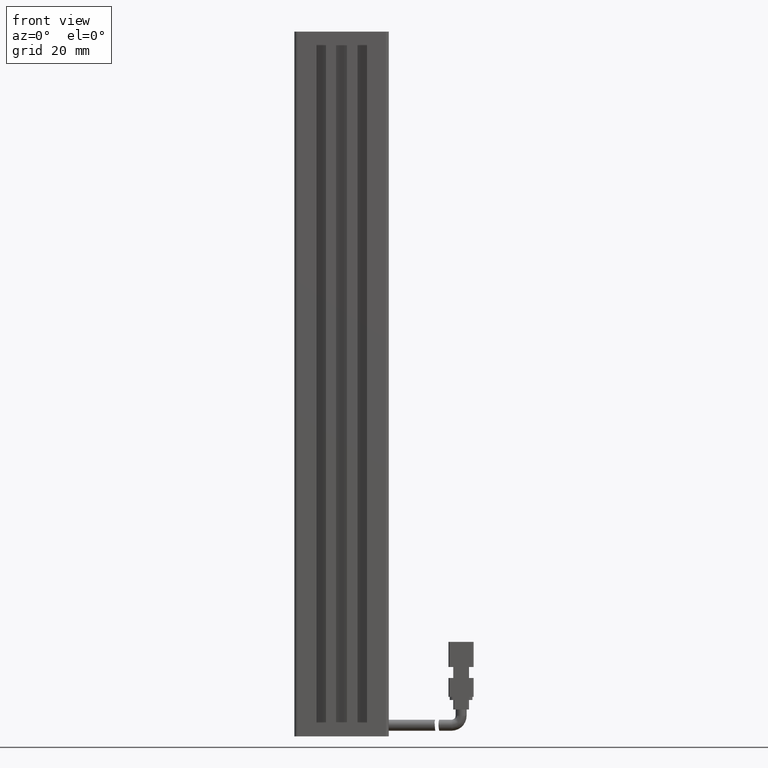
[diagram: clean part render]
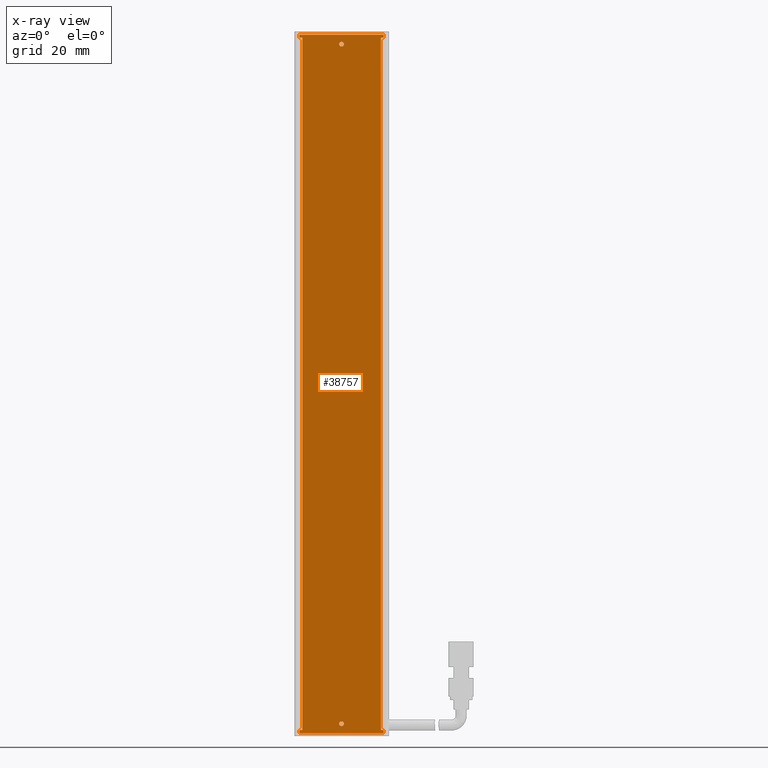
[diagram: x-ray — body ghosted, one internal face saturated and labeled with its STEP entity id]
A machine part, front view, then the same camera in x-ray: the body is ghosted and one INTERNAL B-rep face — a face not visible from any outside direction — is saturated and labeled: STEP entity #38757.
In plain terms, the highlighted planar face has unit normal (-0, 1, 0).
Its self-contained STEP definition (entity closure, byte-faithful):
#457 = DIRECTION ( 'NONE',  ( -5.551115123125781500E-017, -0.0000000000000000000, -1.000000000000000000 ) ) ;
#646 = VERTEX_POINT ( 'NONE', #6693 ) ;
#893 = VECTOR ( 'NONE', #2416, 1000.000000000000000 ) ;
#1146 = CARTESIAN_POINT ( 'NONE',  ( 40.92537974683541800, 32.19594479660386100, -7.749999999999978700 ) ) ;
#2045 = LINE ( 'NONE', #29145, #893 ) ;
#2416 = DIRECTION ( 'NONE',  ( -1.000000000000000000, -0.0000000000000000000, 0.0000000000000000000 ) ) ;
#2928 = ORIENTED_EDGE ( 'NONE', *, *, #33642, .F. ) ;
#3113 = EDGE_LOOP ( 'NONE', ( #26851, #42438 ) ) ;
#3414 = CARTESIAN_POINT ( 'NONE',  ( 54.32537974683540900, 32.19594479660386100, -225.0000000000000000 ) ) ;
#3418 = VERTEX_POINT ( 'NONE', #45708 ) ;
#3623 = CARTESIAN_POINT ( 'NONE',  ( 40.92537974683538200, 32.19594479660386100, -222.2499999999999700 ) ) ;
#3872 = EDGE_CURVE ( 'NONE', #10543, #20979, #39247, .T. ) ;
#4018 = CARTESIAN_POINT ( 'NONE',  ( 28.42537974683542100, 32.19594479660386800, -225.0000000000000000 ) ) ;
#4645 = CARTESIAN_POINT ( 'NONE',  ( 40.92537974683538200, 32.19594479660386100, -222.9999999999999700 ) ) ;
#4692 = EDGE_CURVE ( 'NONE', #29725, #646, #40831, .T. ) ;
#5108 = VECTOR ( 'NONE', #19353, 1000.000000000000000 ) ;
#6693 = CARTESIAN_POINT ( 'NONE',  ( 54.32537974683541600, 32.19594479660386100, -5.000000000000004400 ) ) ;
#6778 = EDGE_CURVE ( 'NONE', #3418, #45992, #45008, .T. ) ;
#6790 = CIRCLE ( 'NONE', #43335, 0.7499999999999997800 ) ;
#7060 = VECTOR ( 'NONE', #8692, 1000.000000000000000 ) ;
#7537 = EDGE_LOOP ( 'NONE', ( #16380, #44627, #19421, #14374, #10986, #37104, #26875, #23112, #30688, #28340, #35672, #22054 ) ) ;
#8097 = DIRECTION ( 'NONE',  ( -0.0000000000000000000, -0.0000000000000000000, -1.000000000000000000 ) ) ;
#8517 = DIRECTION ( 'NONE',  ( 0.0000000000000000000, 0.0000000000000000000, 1.000000000000000000 ) ) ;
#8692 = DIRECTION ( 'NONE',  ( 5.551115123125781500E-017, 0.0000000000000000000, 1.000000000000000000 ) ) ;
#8709 = VERTEX_POINT ( 'NONE', #25631 ) ;
#9054 = CARTESIAN_POINT ( 'NONE',  ( 54.32537974683541600, 32.19594479660386100, -3.999999999999977400 ) ) ;
#9650 = EDGE_CURVE ( 'NONE', #29725, #38605, #42325, .T. ) ;
#9658 = EDGE_CURVE ( 'NONE', #26866, #33759, #20998, .T. ) ;
#10080 = VECTOR ( 'NONE', #47591, 1000.000000000000000 ) ;
#10543 = VERTEX_POINT ( 'NONE', #3414 ) ;
#10827 = VECTOR ( 'NONE', #42648, 1000.000000000000000 ) ;
#10986 = ORIENTED_EDGE ( 'NONE', *, *, #9658, .F. ) ;
#11790 = CARTESIAN_POINT ( 'NONE',  ( 27.52537974683539400, 32.19594479660386100, -3.999999999999976000 ) ) ;
#12207 = DIRECTION ( 'NONE',  ( -1.000000000000000000, -0.0000000000000000000, 5.551115123125781500E-017 ) ) ;
#12712 = EDGE_CURVE ( 'NONE', #8709, #31209, #15006, .T. ) ;
#12886 = DIRECTION ( 'NONE',  ( 5.551115123125781500E-017, 0.0000000000000000000, 1.000000000000000000 ) ) ;
#13688 = VECTOR ( 'NONE', #46316, 1000.000000000000000 ) ;
#14212 = DIRECTION ( 'NONE',  ( 1.000000000000000000, -0.0000000000000000000, 0.0000000000000000000 ) ) ;
#14225 = CARTESIAN_POINT ( 'NONE',  ( 25.92537974683541800, 32.19594479660386100, -5.000000000000004400 ) ) ;
#14374 = ORIENTED_EDGE ( 'NONE', *, *, #47522, .F. ) ;
#15006 = CIRCLE ( 'NONE', #26934, 0.7500000000000006700 ) ;
#15281 = CARTESIAN_POINT ( 'NONE',  ( 40.92537974683541800, 32.19594479660386100, -6.999999999999979600 ) ) ;
#16380 = ORIENTED_EDGE ( 'NONE', *, *, #38679, .F. ) ;
#16412 = CARTESIAN_POINT ( 'NONE',  ( 27.52537974683539400, 32.19594479660386100, -3.999999999999976000 ) ) ;
#17007 = EDGE_CURVE ( 'NONE', #17774, #39316, #34640, .T. ) ;
#17229 = LINE ( 'NONE', #31242, #26203 ) ;
#17774 = VERTEX_POINT ( 'NONE', #18265 ) ;
#18265 = CARTESIAN_POINT ( 'NONE',  ( 40.92537974683541800, 32.19594479660386100, -6.249999999999979600 ) ) ;
#19134 = DIRECTION ( 'NONE',  ( 0.0000000000000000000, 0.0000000000000000000, 1.000000000000000000 ) ) ;
#19258 = EDGE_CURVE ( 'NONE', #38604, #40803, #2045, .T. ) ;
#19353 = DIRECTION ( 'NONE',  ( 5.551115123125781500E-017, 0.0000000000000000000, 1.000000000000000000 ) ) ;
#19421 = ORIENTED_EDGE ( 'NONE', *, *, #4692, .T. ) ;
#19698 = CARTESIAN_POINT ( 'NONE',  ( 53.42537974683542500, 32.19594479660386800, -5.000000000000004400 ) ) ;
#19783 = FACE_BOUND ( 'NONE', #3113, .T. ) ;
#20406 = CARTESIAN_POINT ( 'NONE',  ( 54.32537974683541600, 32.19594479660386100, -3.999999999999977400 ) ) ;
#20979 = VERTEX_POINT ( 'NONE', #21653 ) ;
#20998 = LINE ( 'NONE', #47348, #10827 ) ;
#21490 = CARTESIAN_POINT ( 'NONE',  ( 40.92537974683541800, 32.19594479660386100, -6.999999999999979600 ) ) ;
#21653 = CARTESIAN_POINT ( 'NONE',  ( 54.32537974683539500, 32.19594479660386100, -225.9999999999999700 ) ) ;
#22054 = ORIENTED_EDGE ( 'NONE', *, *, #3872, .F. ) ;
#23112 = ORIENTED_EDGE ( 'NONE', *, *, #48317, .T. ) ;
#23521 = CARTESIAN_POINT ( 'NONE',  ( 54.32537974683541600, 32.19594479660386100, -3.999999999999977400 ) ) ;
#24822 = VECTOR ( 'NONE', #45144, 1000.000000000000000 ) ;
#25087 = CARTESIAN_POINT ( 'NONE',  ( 40.92537974683542500, 32.19594479660386800, -5.000000000000004400 ) ) ;
#25326 = DIRECTION ( 'NONE',  ( 0.0000000000000000000, 0.0000000000000000000, 1.000000000000000000 ) ) ;
#25631 = CARTESIAN_POINT ( 'NONE',  ( 40.92537974683538200, 32.19594479660386100, -223.7499999999999700 ) ) ;
#26203 = VECTOR ( 'NONE', #12207, 1000.000000000000000 ) ;
#26345 = CARTESIAN_POINT ( 'NONE',  ( 40.92537974683538200, 32.19594479660386100, -222.9999999999999700 ) ) ;
#26575 = EDGE_CURVE ( 'NONE', #39316, #17774, #6790, .T. ) ;
#26851 = ORIENTED_EDGE ( 'NONE', *, *, #17007, .F. ) ;
#26866 = VERTEX_POINT ( 'NONE', #49058 ) ;
#26875 = ORIENTED_EDGE ( 'NONE', *, *, #6778, .T. ) ;
#26934 = AXIS2_PLACEMENT_3D ( 'NONE', #26345, #35073, #43642 ) ;
#27158 = CARTESIAN_POINT ( 'NONE',  ( 28.42537974683542100, 32.19594479660386800, -3.000000000000002700 ) ) ;
#27518 = FACE_OUTER_BOUND ( 'NONE', #7537, .T. ) ;
#27741 = AXIS2_PLACEMENT_3D ( 'NONE', #21490, #48051, #25326 ) ;
#28179 = CARTESIAN_POINT ( 'NONE',  ( 28.42537974683542100, 32.19594479660386100, -5.000000000000004400 ) ) ;
#28340 = ORIENTED_EDGE ( 'NONE', *, *, #37080, .F. ) ;
#28920 = LINE ( 'NONE', #23521, #49090 ) ;
#29145 = CARTESIAN_POINT ( 'NONE',  ( 40.92537974683542500, 32.19594479660386800, -225.0000000000000000 ) ) ;
#29725 = VERTEX_POINT ( 'NONE', #19698 ) ;
#30688 = ORIENTED_EDGE ( 'NONE', *, *, #19258, .T. ) ;
#30768 = CARTESIAN_POINT ( 'NONE',  ( 53.42537974683542500, 32.19594479660386100, -225.0000000000000000 ) ) ;
#30885 = EDGE_LOOP ( 'NONE', ( #2928, #47901 ) ) ;
#31209 = VERTEX_POINT ( 'NONE', #3623 ) ;
#31242 = CARTESIAN_POINT ( 'NONE',  ( 54.32537974683540900, 32.19594479660386100, -225.9999999999999700 ) ) ;
#31251 = CARTESIAN_POINT ( 'NONE',  ( 40.92537974683542500, 32.19594479660386800, -225.0000000000000000 ) ) ;
#31366 = DIRECTION ( 'NONE',  ( -0.0000000000000000000, -1.000000000000000000, -0.0000000000000000000 ) ) ;
#31425 = CARTESIAN_POINT ( 'NONE',  ( 27.52537974683538400, 32.19594479660386800, -225.0000000000000000 ) ) ;
#32875 = AXIS2_PLACEMENT_3D ( 'NONE', #9054, #35712, #12886 ) ;
#33642 = EDGE_CURVE ( 'NONE', #31209, #8709, #39961, .T. ) ;
#33725 = DIRECTION ( 'NONE',  ( -0.0000000000000000000, -0.0000000000000000000, -1.000000000000000000 ) ) ;
#33759 = VERTEX_POINT ( 'NONE', #20406 ) ;
#34640 = CIRCLE ( 'NONE', #27741, 0.7499999999999997800 ) ;
#34698 = VECTOR ( 'NONE', #8097, 1000.000000000000000 ) ;
#35073 = DIRECTION ( 'NONE',  ( -0.0000000000000000000, -1.000000000000000000, -0.0000000000000000000 ) ) ;
#35368 = CARTESIAN_POINT ( 'NONE',  ( 27.52537974683538400, 32.19594479660386100, -225.9999999999999700 ) ) ;
#35560 = LINE ( 'NONE', #11790, #5108 ) ;
#35672 = ORIENTED_EDGE ( 'NONE', *, *, #48965, .F. ) ;
#35712 = DIRECTION ( 'NONE',  ( -0.0000000000000000000, 1.000000000000000000, 0.0000000000000000000 ) ) ;
#36349 = AXIS2_PLACEMENT_3D ( 'NONE', #4645, #31366, #8517 ) ;
#37062 = LINE ( 'NONE', #27158, #34698 ) ;
#37080 = EDGE_CURVE ( 'NONE', #41348, #40803, #35560, .T. ) ;
#37104 = ORIENTED_EDGE ( 'NONE', *, *, #42694, .F. ) ;
#37589 = FACE_BOUND ( 'NONE', #30885, .T. ) ;
#38604 = VERTEX_POINT ( 'NONE', #4018 ) ;
#38605 = VERTEX_POINT ( 'NONE', #30768 ) ;
#38679 = EDGE_CURVE ( 'NONE', #38605, #10543, #44057, .T. ) ;
#38757 = ADVANCED_FACE ( 'NONE', ( #27518, #19783, #37589 ), #42965, .F. ) ;
#39247 = LINE ( 'NONE', #45238, #10080 ) ;
#39316 = VERTEX_POINT ( 'NONE', #1146 ) ;
#39961 = CIRCLE ( 'NONE', #36349, 0.7500000000000006700 ) ;
#40803 = VERTEX_POINT ( 'NONE', #31425 ) ;
#40831 = LINE ( 'NONE', #14225, #41986 ) ;
#41171 = VECTOR ( 'NONE', #33725, 1000.000000000000000 ) ;
#41348 = VERTEX_POINT ( 'NONE', #35368 ) ;
#41851 = DIRECTION ( 'NONE',  ( -0.0000000000000000000, -1.000000000000000000, -0.0000000000000000000 ) ) ;
#41986 = VECTOR ( 'NONE', #14212, 1000.000000000000000 ) ;
#42325 = LINE ( 'NONE', #49133, #41171 ) ;
#42438 = ORIENTED_EDGE ( 'NONE', *, *, #26575, .F. ) ;
#42648 = DIRECTION ( 'NONE',  ( 1.000000000000000000, 0.0000000000000000000, -5.551115123125781500E-017 ) ) ;
#42694 = EDGE_CURVE ( 'NONE', #3418, #26866, #46358, .T. ) ;
#42965 = PLANE ( 'NONE',  #32875 ) ;
#43335 = AXIS2_PLACEMENT_3D ( 'NONE', #15281, #41851, #19134 ) ;
#43642 = DIRECTION ( 'NONE',  ( 0.0000000000000000000, 0.0000000000000000000, 1.000000000000000000 ) ) ;
#44057 = LINE ( 'NONE', #31251, #13688 ) ;
#44627 = ORIENTED_EDGE ( 'NONE', *, *, #9650, .F. ) ;
#45008 = LINE ( 'NONE', #25087, #24822 ) ;
#45144 = DIRECTION ( 'NONE',  ( 1.000000000000000000, 0.0000000000000000000, -0.0000000000000000000 ) ) ;
#45238 = CARTESIAN_POINT ( 'NONE',  ( 54.32537974683541600, 32.19594479660386100, -3.999999999999977400 ) ) ;
#45708 = CARTESIAN_POINT ( 'NONE',  ( 27.52537974683538400, 32.19594479660386800, -5.000000000000004400 ) ) ;
#45992 = VERTEX_POINT ( 'NONE', #28179 ) ;
#46316 = DIRECTION ( 'NONE',  ( 1.000000000000000000, 0.0000000000000000000, 0.0000000000000000000 ) ) ;
#46358 = LINE ( 'NONE', #16412, #7060 ) ;
#47348 = CARTESIAN_POINT ( 'NONE',  ( 54.32537974683541600, 32.19594479660386100, -3.999999999999977400 ) ) ;
#47522 = EDGE_CURVE ( 'NONE', #33759, #646, #28920, .T. ) ;
#47591 = DIRECTION ( 'NONE',  ( -5.551115123125781500E-017, -0.0000000000000000000, -1.000000000000000000 ) ) ;
#47901 = ORIENTED_EDGE ( 'NONE', *, *, #12712, .F. ) ;
#48051 = DIRECTION ( 'NONE',  ( -0.0000000000000000000, -1.000000000000000000, -0.0000000000000000000 ) ) ;
#48317 = EDGE_CURVE ( 'NONE', #45992, #38604, #37062, .T. ) ;
#48965 = EDGE_CURVE ( 'NONE', #20979, #41348, #17229, .T. ) ;
#49058 = CARTESIAN_POINT ( 'NONE',  ( 27.52537974683541600, 32.19594479660386100, -3.999999999999976000 ) ) ;
#49090 = VECTOR ( 'NONE', #457, 1000.000000000000000 ) ;
#49133 = CARTESIAN_POINT ( 'NONE',  ( 53.42537974683542500, 32.19594479660386800, -3.000000000000002700 ) ) ;